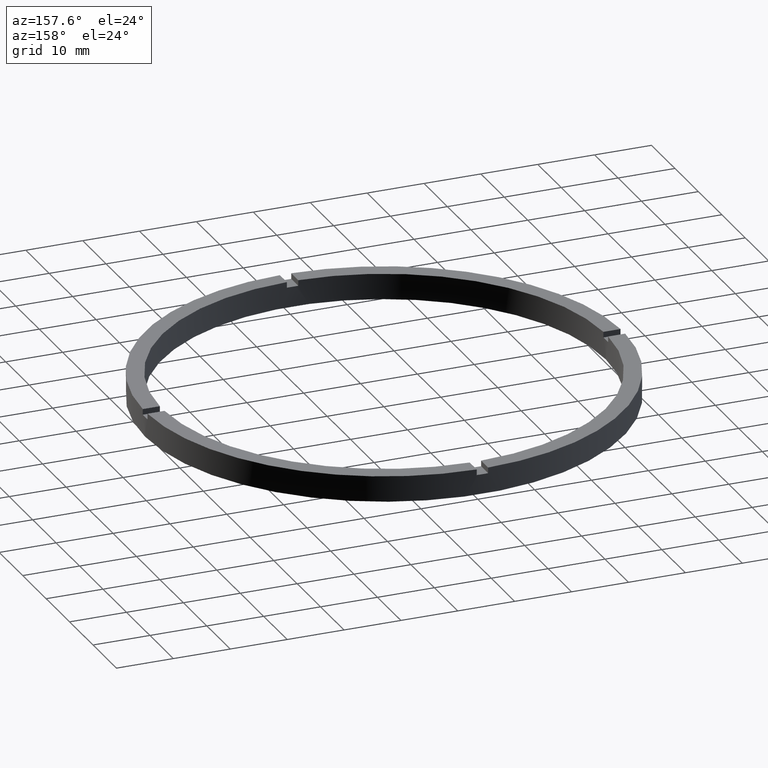
[diagram: clean part render]
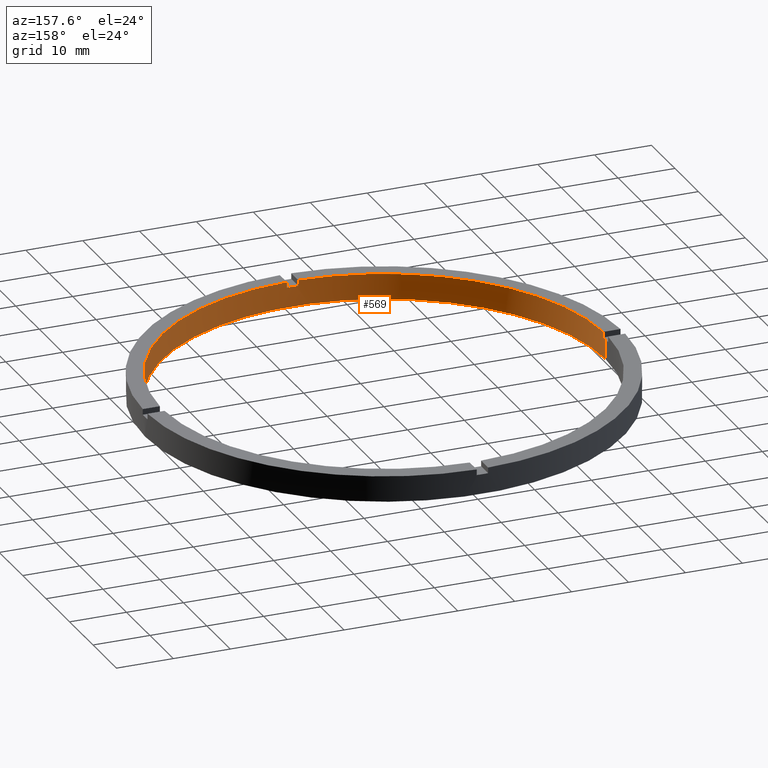
[diagram: same view with one face highlighted and labeled with its STEP entity id]
A machine part, auxiliary view. The second image highlights one B-rep face of the part: STEP entity #569.
In plain terms, the highlighted cylindrical surface (partial cylindrical patch) has radius 39 mm, axis along (-0, -0, -1).
Its self-contained STEP definition (entity closure, byte-faithful):
#5 = DIRECTION ( 'NONE',  ( -0.000000000000000000, 0.000000000000000000, 1.000000000000000000 ) ) ;
#20 = CARTESIAN_POINT ( 'NONE',  ( 39.00000000000000000, 4.776122516674677878E-15, 0.000000000000000000 ) ) ;
#22 = CARTESIAN_POINT ( 'NONE',  ( 39.00000000000000000, 4.776122516674677878E-15, 3.499999999999999556 ) ) ;
#24 = ORIENTED_EDGE ( 'NONE', *, *, #703, .T. ) ;
#25 = ORIENTED_EDGE ( 'NONE', *, *, #303, .F. ) ;
#26 = ORIENTED_EDGE ( 'NONE', *, *, #504, .F. ) ;
#28 = CIRCLE ( 'NONE', #624, 39.00000000000000000 ) ;
#31 = ORIENTED_EDGE ( 'NONE', *, *, #603, .F. ) ;
#32 = VERTEX_POINT ( 'NONE', #274 ) ;
#34 = ORIENTED_EDGE ( 'NONE', *, *, #255, .T. ) ;
#41 = CARTESIAN_POINT ( 'NONE',  ( 0.000000000000000000, 0.000000000000000000, 3.499999999999999556 ) ) ;
#51 = EDGE_LOOP ( 'NONE', ( #542, #564, #269, #26, #555, #535, #24, #373, #34, #31, #297, #25 ) ) ;
#60 = VERTEX_POINT ( 'NONE', #169 ) ;
#72 = DIRECTION ( 'NONE',  ( 0.000000000000000000, 0.000000000000000000, 1.000000000000000000 ) ) ;
#75 = CARTESIAN_POINT ( 'NONE',  ( -1.000000000000159206, -38.98717737923584536, 4.500000000000000000 ) ) ;
#100 = DIRECTION ( 'NONE',  ( -1.000000000000000000, 0.000000000000000000, 0.000000000000000000 ) ) ;
#105 = AXIS2_PLACEMENT_3D ( 'NONE', #654, #732, #485 ) ;
#151 = CIRCLE ( 'NONE', #632, 39.00000000000000000 ) ;
#155 = LINE ( 'NONE', #642, #427 ) ;
#156 = VECTOR ( 'NONE', #72, 1000.000000000000000 ) ;
#157 = EDGE_CURVE ( 'NONE', #60, #677, #411, .T. ) ;
#162 = DIRECTION ( 'NONE',  ( -0.000000000000000000, -0.000000000000000000, -1.000000000000000000 ) ) ;
#163 = CARTESIAN_POINT ( 'NONE',  ( -38.98717737923585247, -1.000000000000028422, 4.500000000000000000 ) ) ;
#167 = LINE ( 'NONE', #682, #156 ) ;
#169 = CARTESIAN_POINT ( 'NONE',  ( -39.00000000000000000, 0.000000000000000000, 0.000000000000000000 ) ) ;
#182 = LINE ( 'NONE', #163, #719 ) ;
#183 = LINE ( 'NONE', #659, #453 ) ;
#186 = CARTESIAN_POINT ( 'NONE',  ( -39.00000000000000000, 0.000000000000000000, 4.500000000000000000 ) ) ;
#187 = CIRCLE ( 'NONE', #408, 39.00000000000000000 ) ;
#193 = EDGE_CURVE ( 'NONE', #392, #315, #416, .T. ) ;
#198 = EDGE_CURVE ( 'NONE', #300, #560, #151, .T. ) ;
#217 = DIRECTION ( 'NONE',  ( 0.000000000000000000, 0.000000000000000000, 1.000000000000000000 ) ) ;
#236 = VERTEX_POINT ( 'NONE', #442 ) ;
#238 = DIRECTION ( 'NONE',  ( 1.000000000000000000, 0.000000000000000000, 0.000000000000000000 ) ) ;
#250 = AXIS2_PLACEMENT_3D ( 'NONE', #350, #712, #415 ) ;
#255 = EDGE_CURVE ( 'NONE', #392, #458, #680, .T. ) ;
#269 = ORIENTED_EDGE ( 'NONE', *, *, #157, .F. ) ;
#274 = CARTESIAN_POINT ( 'NONE',  ( 38.98717737923584536, -1.000000000000156763, 4.500000000000000000 ) ) ;
#277 = DIRECTION ( 'NONE',  ( 1.000000000000000000, 0.000000000000000000, 0.000000000000000000 ) ) ;
#294 = AXIS2_PLACEMENT_3D ( 'NONE', #313, #5, #238 ) ;
#296 = CARTESIAN_POINT ( 'NONE',  ( -1.000000000000159206, -38.98717737923584536, 4.500000000000000000 ) ) ;
#297 = ORIENTED_EDGE ( 'NONE', *, *, #468, .T. ) ;
#300 = VERTEX_POINT ( 'NONE', #477 ) ;
#303 = EDGE_CURVE ( 'NONE', #300, #32, #167, .T. ) ;
#313 = CARTESIAN_POINT ( 'NONE',  ( 0.000000000000000000, 0.000000000000000000, 3.499999999999999556 ) ) ;
#315 = VERTEX_POINT ( 'NONE', #296 ) ;
#345 = CARTESIAN_POINT ( 'NONE',  ( 0.000000000000000000, 0.000000000000000000, 3.499999999999999556 ) ) ;
#347 = EDGE_CURVE ( 'NONE', #560, #677, #155, .T. ) ;
#350 = CARTESIAN_POINT ( 'NONE',  ( 0.000000000000000000, 0.000000000000000000, 4.500000000000000000 ) ) ;
#354 = DIRECTION ( 'NONE',  ( 0.000000000000000000, 0.000000000000000000, 1.000000000000000000 ) ) ;
#373 = ORIENTED_EDGE ( 'NONE', *, *, #193, .F. ) ;
#391 = DIRECTION ( 'NONE',  ( 1.000000000000000000, 0.000000000000000000, 0.000000000000000000 ) ) ;
#392 = VERTEX_POINT ( 'NONE', #466 ) ;
#400 = DIRECTION ( 'NONE',  ( -0.000000000000000000, -0.000000000000000000, -1.000000000000000000 ) ) ;
#404 = DIRECTION ( 'NONE',  ( 1.000000000000000000, 0.000000000000000000, 0.000000000000000000 ) ) ;
#408 = AXIS2_PLACEMENT_3D ( 'NONE', #41, #757, #277 ) ;
#409 = VECTOR ( 'NONE', #400, 1000.000000000000000 ) ;
#411 = CIRCLE ( 'NONE', #105, 39.00000000000000000 ) ;
#415 = DIRECTION ( 'NONE',  ( 1.000000000000000000, 0.000000000000000000, 0.000000000000000000 ) ) ;
#416 = LINE ( 'NONE', #75, #420 ) ;
#420 = VECTOR ( 'NONE', #354, 1000.000000000000000 ) ;
#427 = VECTOR ( 'NONE', #463, 1000.000000000000000 ) ;
#442 = CARTESIAN_POINT ( 'NONE',  ( -38.98717737923585247, -1.000000000000028422, 4.500000000000000000 ) ) ;
#453 = VECTOR ( 'NONE', #162, 1000.000000000000000 ) ;
#456 = FACE_OUTER_BOUND ( 'NONE', #51, .T. ) ;
#458 = VERTEX_POINT ( 'NONE', #514 ) ;
#461 = CARTESIAN_POINT ( 'NONE',  ( 0.000000000000000000, 0.000000000000000000, 4.500000000000000000 ) ) ;
#463 = DIRECTION ( 'NONE',  ( -0.000000000000000000, -0.000000000000000000, -1.000000000000000000 ) ) ;
#466 = CARTESIAN_POINT ( 'NONE',  ( -1.000000000000159206, -38.98717737923584536, 3.499999999999999556 ) ) ;
#468 = EDGE_CURVE ( 'NONE', #673, #32, #707, .T. ) ;
#477 = CARTESIAN_POINT ( 'NONE',  ( 38.98717737923584536, -1.000000000000156763, 3.499999999999999556 ) ) ;
#485 = DIRECTION ( 'NONE',  ( 1.000000000000000000, 0.000000000000000000, 0.000000000000000000 ) ) ;
#504 = EDGE_CURVE ( 'NONE', #566, #60, #684, .T. ) ;
#507 = EDGE_CURVE ( 'NONE', #236, #720, #182, .T. ) ;
#514 = CARTESIAN_POINT ( 'NONE',  ( 0.9999999999998409050, -38.98717737923585958, 3.499999999999999556 ) ) ;
#530 = DIRECTION ( 'NONE',  ( -0.000000000000000000, -0.000000000000000000, -1.000000000000000000 ) ) ;
#535 = ORIENTED_EDGE ( 'NONE', *, *, #507, .F. ) ;
#542 = ORIENTED_EDGE ( 'NONE', *, *, #198, .T. ) ;
#555 = ORIENTED_EDGE ( 'NONE', *, *, #573, .T. ) ;
#560 = VERTEX_POINT ( 'NONE', #22 ) ;
#564 = ORIENTED_EDGE ( 'NONE', *, *, #347, .T. ) ;
#566 = VERTEX_POINT ( 'NONE', #592 ) ;
#569 = ADVANCED_FACE ( 'NONE', ( #456 ), #711, .F. ) ;
#573 = EDGE_CURVE ( 'NONE', #566, #720, #187, .T. ) ;
#584 = CARTESIAN_POINT ( 'NONE',  ( -38.98717737923585247, -1.000000000000028422, 3.499999999999999556 ) ) ;
#592 = CARTESIAN_POINT ( 'NONE',  ( -39.00000000000000000, 0.000000000000000000, 3.499999999999999556 ) ) ;
#603 = EDGE_CURVE ( 'NONE', #673, #458, #183, .T. ) ;
#624 = AXIS2_PLACEMENT_3D ( 'NONE', #461, #755, #391 ) ;
#632 = AXIS2_PLACEMENT_3D ( 'NONE', #345, #217, #404 ) ;
#642 = CARTESIAN_POINT ( 'NONE',  ( 39.00000000000000000, 4.776122516674677878E-15, 4.500000000000000000 ) ) ;
#651 = CARTESIAN_POINT ( 'NONE',  ( 0.000000000000000000, 0.000000000000000000, 4.500000000000000000 ) ) ;
#654 = CARTESIAN_POINT ( 'NONE',  ( 0.000000000000000000, 0.000000000000000000, 0.000000000000000000 ) ) ;
#659 = CARTESIAN_POINT ( 'NONE',  ( 0.9999999999998409050, -38.98717737923585958, 4.500000000000000000 ) ) ;
#673 = VERTEX_POINT ( 'NONE', #749 ) ;
#677 = VERTEX_POINT ( 'NONE', #20 ) ;
#680 = CIRCLE ( 'NONE', #294, 39.00000000000000000 ) ;
#682 = CARTESIAN_POINT ( 'NONE',  ( 38.98717737923584536, -1.000000000000156763, 4.500000000000000000 ) ) ;
#684 = LINE ( 'NONE', #186, #409 ) ;
#703 = EDGE_CURVE ( 'NONE', #236, #315, #28, .T. ) ;
#706 = AXIS2_PLACEMENT_3D ( 'NONE', #651, #530, #100 ) ;
#707 = CIRCLE ( 'NONE', #250, 39.00000000000000000 ) ;
#711 = CYLINDRICAL_SURFACE ( 'NONE', #706, 39.00000000000000000 ) ;
#712 = DIRECTION ( 'NONE',  ( 0.000000000000000000, 0.000000000000000000, 1.000000000000000000 ) ) ;
#719 = VECTOR ( 'NONE', #765, 1000.000000000000000 ) ;
#720 = VERTEX_POINT ( 'NONE', #584 ) ;
#732 = DIRECTION ( 'NONE',  ( 0.000000000000000000, 0.000000000000000000, 1.000000000000000000 ) ) ;
#749 = CARTESIAN_POINT ( 'NONE',  ( 0.9999999999998409050, -38.98717737923585958, 4.500000000000000000 ) ) ;
#755 = DIRECTION ( 'NONE',  ( 0.000000000000000000, 0.000000000000000000, 1.000000000000000000 ) ) ;
#757 = DIRECTION ( 'NONE',  ( 0.000000000000000000, 0.000000000000000000, 1.000000000000000000 ) ) ;
#765 = DIRECTION ( 'NONE',  ( -0.000000000000000000, -0.000000000000000000, -1.000000000000000000 ) ) ;